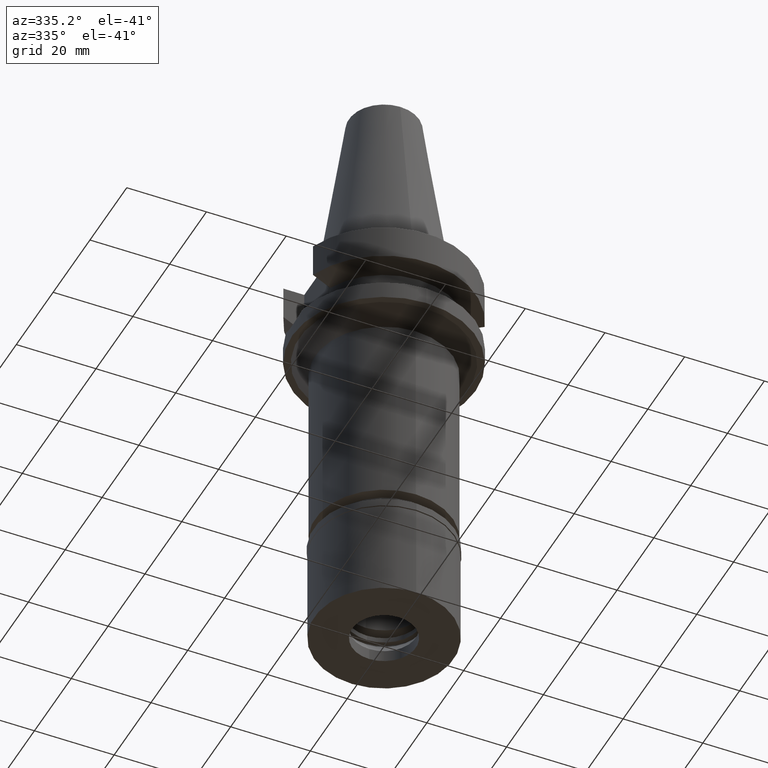
[diagram: clean part render]
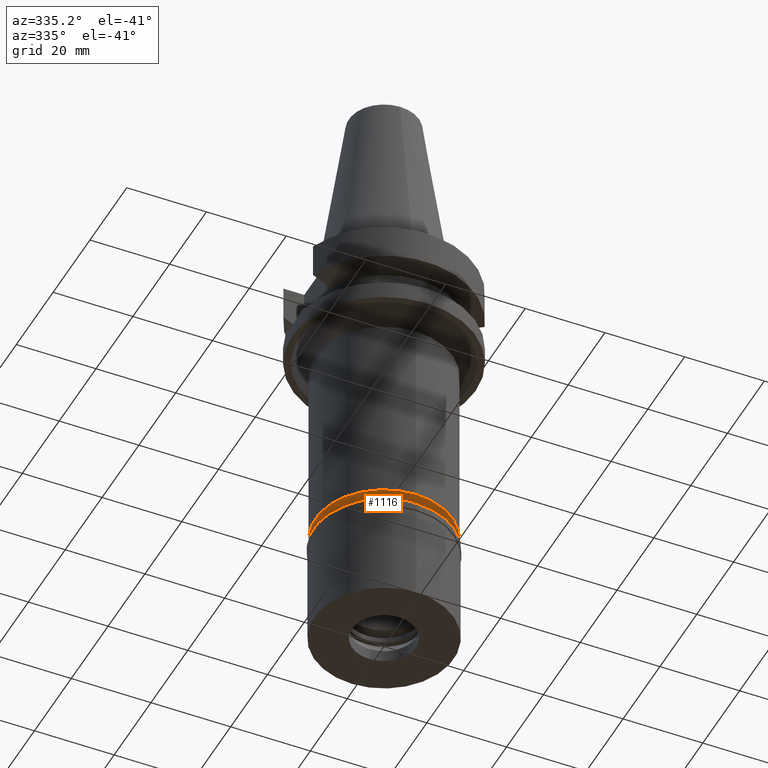
[diagram: same view with one face highlighted and labeled with its STEP entity id]
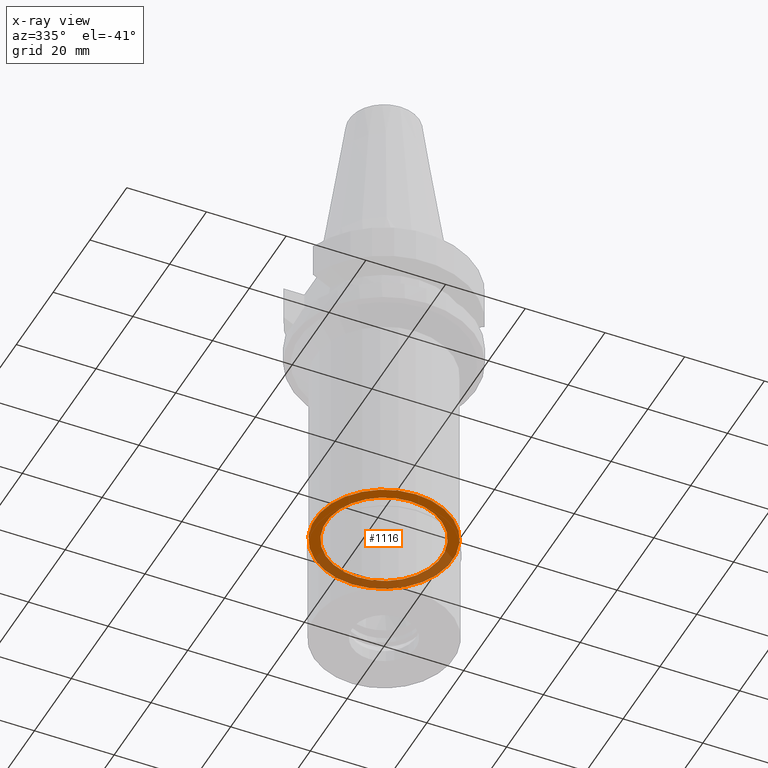
[diagram: x-ray of the same camera — body ghosted, the highlighted face saturated]
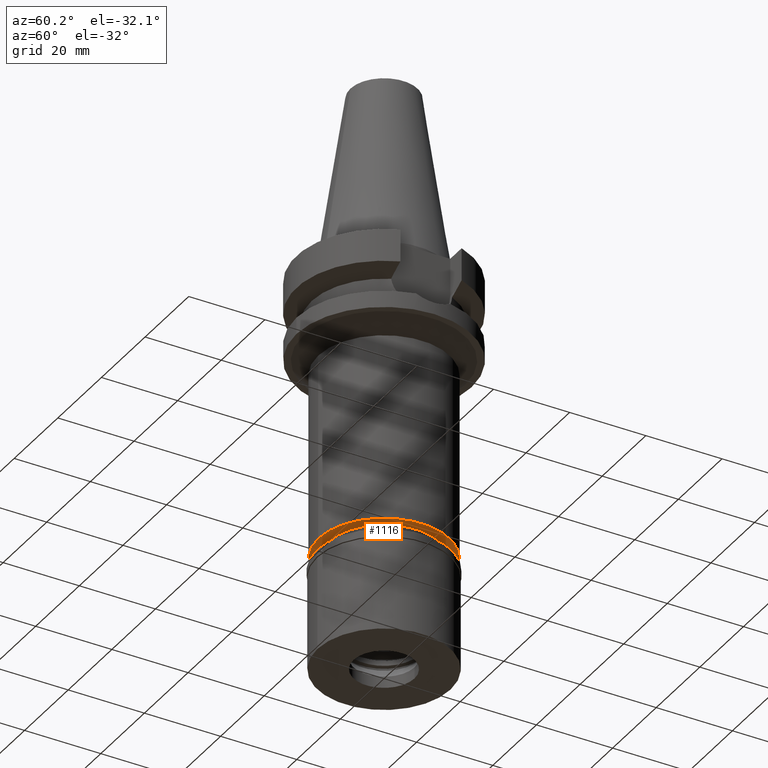
[diagram: same view with one face highlighted and labeled with its STEP entity id]
A machine part, auxiliary view. The second image highlights one B-rep face of the part: STEP entity #1116.
The next image is the same camera in x-ray: the body ghosted, the highlighted face saturated — about 39% of this face is hidden behind the body in this view.
A second angle (auxiliary view) of the same face is appended — the face is thin or edge-on in the first view.
In plain terms, the highlighted planar face has unit normal (0, 0, -1).
Its self-contained STEP definition (entity closure, byte-faithful):
#37 = ORIENTED_EDGE ( 'NONE', *, *, #404, .F. ) ;
#66 = ORIENTED_EDGE ( 'NONE', *, *, #2960, .F. ) ;
#103 = DIRECTION ( 'NONE',  ( 0.0000000000000000000, 0.0000000000000000000, 1.000000000000000000 ) ) ;
#120 = CARTESIAN_POINT ( 'NONE',  ( 0.0000000000000000000, 0.0000000000000000000, -75.20000000000000284 ) ) ;
#153 = CARTESIAN_POINT ( 'NONE',  ( 0.0000000000000000000, 14.50000000000000000, -75.20000000000000284 ) ) ;
#165 = DIRECTION ( 'NONE',  ( 0.0000000000000000000, 0.0000000000000000000, -1.000000000000000000 ) ) ;
#298 = AXIS2_PLACEMENT_3D ( 'NONE', #1454, #103, #1923 ) ;
#363 = DIRECTION ( 'NONE',  ( 0.0000000000000000000, 0.0000000000000000000, -1.000000000000000000 ) ) ;
#399 = AXIS2_PLACEMENT_3D ( 'NONE', #1487, #165, #411 ) ;
#404 = EDGE_CURVE ( 'NONE', #2532, #798, #2249, .T. ) ;
#411 = DIRECTION ( 'NONE',  ( 0.0000000000000000000, -1.000000000000000000, 0.0000000000000000000 ) ) ;
#456 = CARTESIAN_POINT ( 'NONE',  ( 0.0000000000000000000, -14.50000000000000000, -75.20000000000000284 ) ) ;
#774 = FACE_BOUND ( 'NONE', #2039, .T. ) ;
#798 = VERTEX_POINT ( 'NONE', #2813 ) ;
#1116 = ADVANCED_FACE ( 'NONE', ( #1739, #774 ), #1692, .T. ) ;
#1382 = EDGE_LOOP ( 'NONE', ( #2771, #37 ) ) ;
#1454 = CARTESIAN_POINT ( 'NONE',  ( 0.0000000000000000000, 1.904570702033999722E-14, -75.20000000000000284 ) ) ;
#1484 = DIRECTION ( 'NONE',  ( 0.0000000000000000000, -1.000000000000000000, 0.0000000000000000000 ) ) ;
#1487 = CARTESIAN_POINT ( 'NONE',  ( 0.0000000000000000000, 1.904570702033999722E-14, -75.20000000000000284 ) ) ;
#1604 = ORIENTED_EDGE ( 'NONE', *, *, #2843, .F. ) ;
#1669 = CARTESIAN_POINT ( 'NONE',  ( 0.0000000000000000000, -17.25000000000000000, -75.20000000000000284 ) ) ;
#1683 = CIRCLE ( 'NONE', #399, 14.50000000000000000 ) ;
#1684 = DIRECTION ( 'NONE',  ( 0.0000000000000000000, 0.0000000000000000000, -1.000000000000000000 ) ) ;
#1692 = PLANE ( 'NONE',  #1897 ) ;
#1700 = CARTESIAN_POINT ( 'NONE',  ( 0.0000000000000000000, 1.904570702033999722E-14, -75.20000000000000284 ) ) ;
#1739 = FACE_OUTER_BOUND ( 'NONE', #1382, .T. ) ;
#1897 = AXIS2_PLACEMENT_3D ( 'NONE', #120, #363, #1484 ) ;
#1923 = DIRECTION ( 'NONE',  ( 0.0000000000000000000, 1.000000000000000000, 0.0000000000000000000 ) ) ;
#1933 = DIRECTION ( 'NONE',  ( 0.0000000000000000000, 1.000000000000000000, 0.0000000000000000000 ) ) ;
#2034 = DIRECTION ( 'NONE',  ( 0.0000000000000000000, -1.000000000000000000, 0.0000000000000000000 ) ) ;
#2039 = EDGE_LOOP ( 'NONE', ( #1604, #66 ) ) ;
#2084 = VERTEX_POINT ( 'NONE', #153 ) ;
#2150 = AXIS2_PLACEMENT_3D ( 'NONE', #1700, #2640, #2034 ) ;
#2161 = CARTESIAN_POINT ( 'NONE',  ( 0.0000000000000000000, 1.904570702033999722E-14, -75.20000000000000284 ) ) ;
#2249 = CIRCLE ( 'NONE', #2150, 17.25000000000000000 ) ;
#2401 = EDGE_CURVE ( 'NONE', #798, #2532, #2852, .T. ) ;
#2482 = CIRCLE ( 'NONE', #2710, 14.50000000000000000 ) ;
#2532 = VERTEX_POINT ( 'NONE', #1669 ) ;
#2640 = DIRECTION ( 'NONE',  ( 0.0000000000000000000, 0.0000000000000000000, 1.000000000000000000 ) ) ;
#2651 = VERTEX_POINT ( 'NONE', #456 ) ;
#2710 = AXIS2_PLACEMENT_3D ( 'NONE', #2161, #1684, #1933 ) ;
#2771 = ORIENTED_EDGE ( 'NONE', *, *, #2401, .F. ) ;
#2813 = CARTESIAN_POINT ( 'NONE',  ( 0.0000000000000000000, 17.25000000000000000, -75.20000000000000284 ) ) ;
#2843 = EDGE_CURVE ( 'NONE', #2084, #2651, #2482, .T. ) ;
#2852 = CIRCLE ( 'NONE', #298, 17.25000000000000000 ) ;
#2960 = EDGE_CURVE ( 'NONE', #2651, #2084, #1683, .T. ) ;